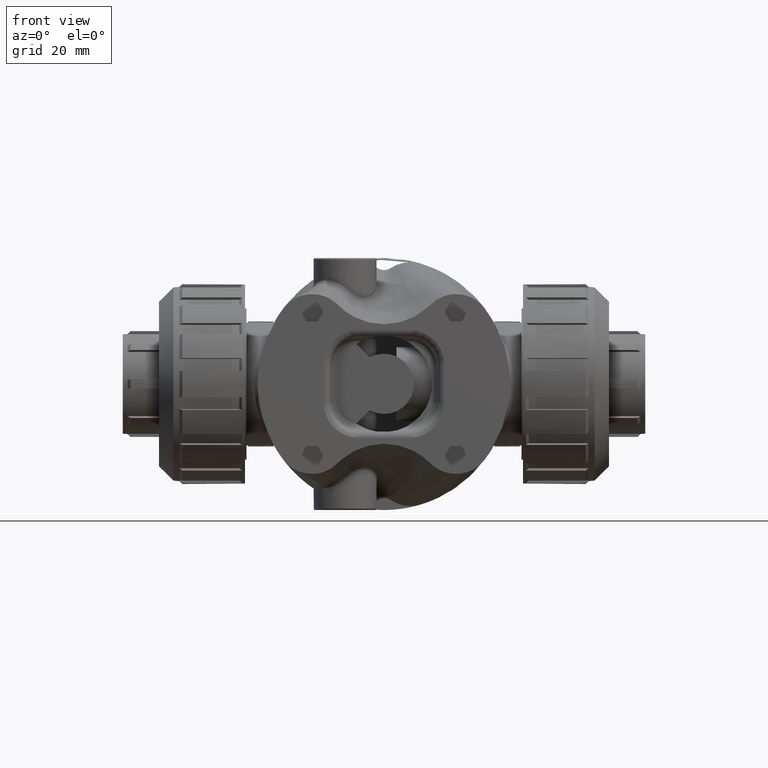
[diagram: clean part render]
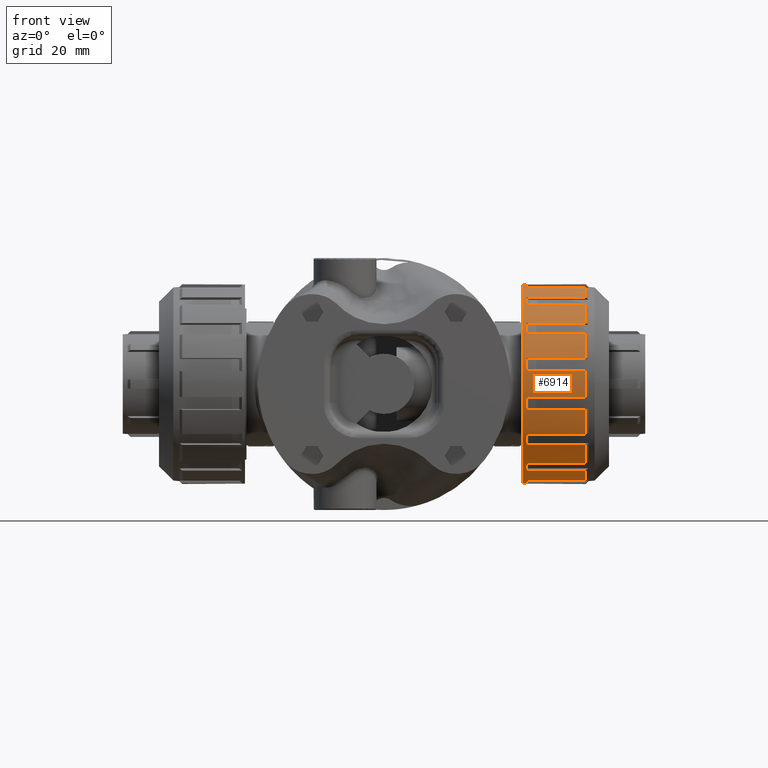
[diagram: same view with one face highlighted and labeled with its STEP entity id]
A machine part, front view. The second image highlights one B-rep face of the part: STEP entity #6914.
In plain terms, the highlighted cylindrical surface (bore or boss wall) has radius 35.306 mm, axis along (1, -0, -0).
Its self-contained STEP definition (entity closure, byte-faithful):
#79=CARTESIAN_POINT('',(1.930830213315427,2.217136898541803,-0.359758472692506));
#80=VERTEX_POINT('',#79);
#81=CARTESIAN_POINT('',(1.930830213315428,0.874500000000000,1.996539E-015));
#82=DIRECTION('',(1.0,0.0,0.0));
#83=DIRECTION('',(0.0,1.0,0.0));
#84=AXIS2_PLACEMENT_3D('',#81,#82,#83);
#85=CIRCLE('',#84,1.390000000000000);
#86=EDGE_CURVE('',#80,#80,#85,.T.);
#4863=CARTESIAN_POINT('',(1.971830213315427,2.078275311260367,-0.695000000000002));
#4864=VERTEX_POINT('',#4863);
#4873=CARTESIAN_POINT('',(2.801830213315426,2.078275311260367,-0.695000000000004));
#4874=VERTEX_POINT('',#4873);
#4875=CARTESIAN_POINT('',(1.971830213315427,2.078275311260367,-0.695000000000002));
#4876=DIRECTION('',(1.0,0.0,0.0));
#4877=VECTOR('',#4876,0.829999999999999);
#4878=LINE('',#4875,#4877);
#4879=EDGE_CURVE('',#4864,#4874,#4878,.T.);
#4903=CARTESIAN_POINT('',(2.801830213315427,2.217136898541804,-0.359758472692508));
#4904=VERTEX_POINT('',#4903);
#4921=CARTESIAN_POINT('',(2.801830213315427,0.874500000000000,8.345585E-017));
#4922=DIRECTION('',(1.000000000000000,7.963321E-016,-4.597625E-016));
#4923=DIRECTION('',(-9.195251E-016,0.866025403784437,-0.500000000000003));
#4924=AXIS2_PLACEMENT_3D('',#4921,#4922,#4923);
#4925=CIRCLE('',#4924,1.389999999999999);
#4926=EDGE_CURVE('',#4874,#4904,#4925,.T.);
#4938=CARTESIAN_POINT('',(1.971830213315428,2.217136898541804,-0.359758472692506));
#4939=VERTEX_POINT('',#4938);
#4953=CARTESIAN_POINT('',(1.971830213315428,2.217136898541804,-0.359758472692506));
#4954=DIRECTION('',(1.0,0.0,0.0));
#4955=VECTOR('',#4954,0.829999999999999);
#4956=LINE('',#4953,#4955);
#4957=EDGE_CURVE('',#4939,#4904,#4956,.T.);
#4967=CARTESIAN_POINT('',(1.971830213315426,1.720678386322117,-1.102761143004818));
#4968=VERTEX_POINT('',#4967);
#4977=CARTESIAN_POINT('',(2.801830213315426,1.720678386322117,-1.102761143004820));
#4978=VERTEX_POINT('',#4977);
#4979=CARTESIAN_POINT('',(1.971830213315426,1.720678386322117,-1.102761143004818));
#4980=DIRECTION('',(1.0,0.0,0.0));
#4981=VECTOR('',#4980,0.830000000000000);
#4982=LINE('',#4979,#4981);
#4983=EDGE_CURVE('',#4968,#4978,#4982,.T.);
#5007=CARTESIAN_POINT('',(2.801830213315426,1.977261143004814,-0.846178386322126));
#5008=VERTEX_POINT('',#5007);
#5025=CARTESIAN_POINT('',(2.801830213315427,0.874500000000000,8.369815E-017));
#5026=DIRECTION('',(1.0,9.836919E-016,-1.281972E-015));
#5027=DIRECTION('',(-1.615891E-015,0.608761429008718,-0.793353340291238));
#5028=AXIS2_PLACEMENT_3D('',#5025,#5026,#5027);
#5029=CIRCLE('',#5028,1.390000000000000);
#5030=EDGE_CURVE('',#4978,#5008,#5029,.T.);
#5042=CARTESIAN_POINT('',(1.971830213315426,1.977261143004814,-0.846178386322124));
#5043=VERTEX_POINT('',#5042);
#5057=CARTESIAN_POINT('',(1.971830213315426,1.977261143004814,-0.846178386322124));
#5058=DIRECTION('',(1.0,0.0,0.0));
#5059=VECTOR('',#5058,0.830000000000000);
#5060=LINE('',#5057,#5059);
#5061=EDGE_CURVE('',#5043,#5008,#5060,.T.);
#5071=CARTESIAN_POINT('',(1.971830213315425,1.234258472692499,-1.342636898541804));
#5072=VERTEX_POINT('',#5071);
#5081=CARTESIAN_POINT('',(2.801830213315425,1.234258472692499,-1.342636898541806));
#5082=VERTEX_POINT('',#5081);
#5083=CARTESIAN_POINT('',(1.971830213315425,1.234258472692499,-1.342636898541803));
#5084=DIRECTION('',(1.0,0.0,0.0));
#5085=VECTOR('',#5084,0.829999999999999);
#5086=LINE('',#5083,#5085);
#5087=EDGE_CURVE('',#5072,#5082,#5086,.T.);
#5111=CARTESIAN_POINT('',(2.801830213315425,1.569499999999996,-1.203775311260372));
#5112=VERTEX_POINT('',#5111);
#5129=CARTESIAN_POINT('',(2.801830213315427,0.874500000000000,8.386005E-017));
#5130=DIRECTION('',(1.000000000000000,5.346277E-016,-1.995258E-015));
#5131=DIRECTION('',(-2.065643E-015,0.258819045102518,-0.965925826289069));
#5132=AXIS2_PLACEMENT_3D('',#5129,#5130,#5131);
#5133=CIRCLE('',#5132,1.389999999999999);
#5134=EDGE_CURVE('',#5082,#5112,#5133,.T.);
#5146=CARTESIAN_POINT('',(1.971830213315425,1.569499999999996,-1.203775311260370));
#5147=VERTEX_POINT('',#5146);
#5161=CARTESIAN_POINT('',(1.971830213315425,1.569499999999996,-1.203775311260370));
#5162=DIRECTION('',(1.0,0.0,0.0));
#5163=VECTOR('',#5162,0.830000000000000);
#5164=LINE('',#5161,#5163);
#5165=EDGE_CURVE('',#5147,#5112,#5164,.T.);
#5175=CARTESIAN_POINT('',(1.971830213315425,0.693068592814123,-1.378108357309593));
#5176=VERTEX_POINT('',#5175);
#5185=CARTESIAN_POINT('',(2.801830213315425,0.693068592814123,-1.378108357309595));
#5186=VERTEX_POINT('',#5185);
#5187=CARTESIAN_POINT('',(1.971830213315425,0.693068592814123,-1.378108357309593));
#5188=DIRECTION('',(1.0,0.0,0.0));
#5189=VECTOR('',#5188,0.829999999999999);
#5190=LINE('',#5187,#5189);
#5191=EDGE_CURVE('',#5176,#5186,#5190,.T.);
#5215=CARTESIAN_POINT('',(2.801830213315425,1.055931407185866,-1.378108357309597));
#5216=VERTEX_POINT('',#5215);
#5233=CARTESIAN_POINT('',(2.801830213315427,0.874500000000000,8.391690E-017));
#5234=DIRECTION('',(1.0,-2.871982E-016,-2.181487E-015));
#5235=DIRECTION('',(-2.200311E-015,-0.130526192220055,-0.991444861373810));
#5236=AXIS2_PLACEMENT_3D('',#5233,#5234,#5235);
#5237=CIRCLE('',#5236,1.389999999999999);
#5238=EDGE_CURVE('',#5186,#5216,#5237,.T.);
#5250=CARTESIAN_POINT('',(1.971830213315425,1.055931407185867,-1.378108357309595));
#5251=VERTEX_POINT('',#5250);
#5265=CARTESIAN_POINT('',(1.971830213315425,1.055931407185867,-1.378108357309595));
#5266=DIRECTION('',(1.0,0.0,0.0));
#5267=VECTOR('',#5266,0.830000000000000);
#5268=LINE('',#5265,#5267);
#5269=EDGE_CURVE('',#5251,#5216,#5268,.T.);
#5279=CARTESIAN_POINT('',(1.971830213315426,0.179499999999997,-1.203775311260365));
#5280=VERTEX_POINT('',#5279);
#5289=CARTESIAN_POINT('',(2.801830213315425,0.179499999999996,-1.203775311260367));
#5290=VERTEX_POINT('',#5289);
#5291=CARTESIAN_POINT('',(1.971830213315426,0.179499999999997,-1.203775311260365));
#5292=DIRECTION('',(1.0,0.0,0.0));
#5293=VECTOR('',#5292,0.829999999999999);
#5294=LINE('',#5291,#5293);
#5295=EDGE_CURVE('',#5280,#5290,#5294,.T.);
#5319=CARTESIAN_POINT('',(2.801830213315425,0.514741527307492,-1.342636898541803));
#5320=VERTEX_POINT('',#5319);
#5337=CARTESIAN_POINT('',(2.801830213315427,0.874500000000000,8.386005E-017));
#5338=DIRECTION('',(1.000000000000000,-9.996964E-016,-1.731525E-015));
#5339=DIRECTION('',(-1.999393E-015,-0.500000000000003,-0.866025403784437));
#5340=AXIS2_PLACEMENT_3D('',#5337,#5338,#5339);
#5341=CIRCLE('',#5340,1.389999999999999);
#5342=EDGE_CURVE('',#5290,#5320,#5341,.T.);
#5354=CARTESIAN_POINT('',(1.971830213315425,0.514741527307492,-1.342636898541801));
#5355=VERTEX_POINT('',#5354);
#5369=CARTESIAN_POINT('',(1.971830213315425,0.514741527307492,-1.342636898541801));
#5370=DIRECTION('',(1.0,0.0,0.0));
#5371=VECTOR('',#5370,0.829999999999999);
#5372=LINE('',#5369,#5371);
#5373=EDGE_CURVE('',#5355,#5320,#5372,.T.);
#5383=CARTESIAN_POINT('',(1.971830213315426,-0.228261143004819,-0.846178386322116));
#5384=VERTEX_POINT('',#5383);
#5393=CARTESIAN_POINT('',(2.801830213315426,-0.228261143004819,-0.846178386322118));
#5394=VERTEX_POINT('',#5393);
#5395=CARTESIAN_POINT('',(1.971830213315426,-0.228261143004819,-0.846178386322116));
#5396=DIRECTION('',(1.0,0.0,0.0));
#5397=VECTOR('',#5396,0.830000000000000);
#5398=LINE('',#5395,#5397);
#5399=EDGE_CURVE('',#5384,#5394,#5398,.T.);
#5423=CARTESIAN_POINT('',(2.801830213315425,0.028321613677875,-1.102761143004814));
#5424=VERTEX_POINT('',#5423);
#5441=CARTESIAN_POINT('',(2.801830213315427,0.874500000000000,8.369815E-017));
#5442=DIRECTION('',(1.000000000000000,-1.184855E-015,-9.091709E-016));
#5443=DIRECTION('',(-1.493477E-015,-0.793353340291237,-0.608761429008718));
#5444=AXIS2_PLACEMENT_3D('',#5441,#5442,#5443);
#5445=CIRCLE('',#5444,1.390000000000000);
#5446=EDGE_CURVE('',#5394,#5424,#5445,.T.);
#5458=CARTESIAN_POINT('',(1.971830213315425,0.028321613677875,-1.102761143004812));
#5459=VERTEX_POINT('',#5458);
#5473=CARTESIAN_POINT('',(1.971830213315425,0.028321613677875,-1.102761143004812));
#5474=DIRECTION('',(1.0,0.0,0.0));
#5475=VECTOR('',#5474,0.829999999999999);
#5476=LINE('',#5473,#5475);
#5477=EDGE_CURVE('',#5459,#5424,#5476,.T.);
#5487=CARTESIAN_POINT('',(1.971830213315427,-0.468136898541805,-0.359758472692497));
#5488=VERTEX_POINT('',#5487);
#5497=CARTESIAN_POINT('',(2.801830213315426,-0.468136898541806,-0.359758472692499));
#5498=VERTEX_POINT('',#5497);
#5499=CARTESIAN_POINT('',(1.971830213315427,-0.468136898541805,-0.359758472692497));
#5500=DIRECTION('',(1.0,0.0,0.0));
#5501=VECTOR('',#5500,0.829999999999999);
#5502=LINE('',#5499,#5501);
#5503=EDGE_CURVE('',#5488,#5498,#5502,.T.);
#5527=CARTESIAN_POINT('',(2.801830213315426,-0.329275311260372,-0.694999999999996));
#5528=VERTEX_POINT('',#5527);
#5545=CARTESIAN_POINT('',(2.801830213315427,0.874500000000000,8.345585E-017));
#5546=DIRECTION('',(1.000000000000000,-7.337012E-016,-1.965947E-016));
#5547=DIRECTION('',(-7.595834E-016,-0.965925826289069,-0.258819045102518));
#5548=AXIS2_PLACEMENT_3D('',#5545,#5546,#5547);
#5549=CIRCLE('',#5548,1.389999999999999);
#5550=EDGE_CURVE('',#5498,#5528,#5549,.T.);
#5562=CARTESIAN_POINT('',(1.971830213315426,-0.329275311260372,-0.694999999999994));
#5563=VERTEX_POINT('',#5562);
#5577=CARTESIAN_POINT('',(1.971830213315426,-0.329275311260372,-0.694999999999994));
#5578=DIRECTION('',(1.0,0.0,0.0));
#5579=VECTOR('',#5578,0.830000000000000);
#5580=LINE('',#5577,#5579);
#5581=EDGE_CURVE('',#5563,#5528,#5580,.T.);
#5591=CARTESIAN_POINT('',(1.971830213315428,-0.503608357309595,0.181431407185878));
#5592=VERTEX_POINT('',#5591);
#5601=CARTESIAN_POINT('',(2.801830213315427,-0.503608357309595,0.181431407185876));
#5602=VERTEX_POINT('',#5601);
#5603=CARTESIAN_POINT('',(1.971830213315428,-0.503608357309595,0.181431407185878));
#5604=DIRECTION('',(1.0,0.0,0.0));
#5605=VECTOR('',#5604,0.829999999999999);
#5606=LINE('',#5603,#5605);
#5607=EDGE_CURVE('',#5592,#5602,#5606,.T.);
#5631=CARTESIAN_POINT('',(2.801830213315427,-0.503608357309597,-0.181431407185867));
#5632=VERTEX_POINT('',#5631);
#5649=CARTESIAN_POINT('',(2.801830213315427,0.874500000000000,8.317003E-017));
#5650=DIRECTION('',(1.000000000000000,8.978344E-017,-1.182021E-017));
#5651=DIRECTION('',(9.055817E-017,-0.991444861373810,0.130526192220055));
#5652=AXIS2_PLACEMENT_3D('',#5649,#5650,#5651);
#5653=CIRCLE('',#5652,1.389999999999999);
#5654=EDGE_CURVE('',#5602,#5632,#5653,.T.);
#5666=CARTESIAN_POINT('',(1.971830213315427,-0.503608357309597,-0.181431407185865));
#5667=VERTEX_POINT('',#5666);
#5681=CARTESIAN_POINT('',(1.971830213315427,-0.503608357309597,-0.181431407185865));
#5682=DIRECTION('',(1.0,0.0,0.0));
#5683=VECTOR('',#5682,0.830000000000000);
#5684=LINE('',#5681,#5683);
#5685=EDGE_CURVE('',#5667,#5632,#5684,.T.);
#5695=CARTESIAN_POINT('',(1.971830213315429,-0.329275311260367,0.695000000000006));
#5696=VERTEX_POINT('',#5695);
#5705=CARTESIAN_POINT('',(2.801830213315429,-0.329275311260367,0.695000000000004));
#5706=VERTEX_POINT('',#5705);
#5707=CARTESIAN_POINT('',(1.971830213315429,-0.329275311260367,0.695000000000006));
#5708=DIRECTION('',(1.0,0.0,0.0));
#5709=VECTOR('',#5708,0.830000000000000);
#5710=LINE('',#5707,#5709);
#5711=EDGE_CURVE('',#5696,#5706,#5710,.T.);
#5735=CARTESIAN_POINT('',(2.801830213315428,-0.468136898541804,0.359758472692508));
#5736=VERTEX_POINT('',#5735);
#5753=CARTESIAN_POINT('',(2.801830213315427,0.874500000000000,8.288422E-017));
#5754=DIRECTION('',(1.000000000000000,8.032575E-016,-4.637609E-016));
#5755=DIRECTION('',(9.275218E-016,-0.866025403784437,0.500000000000003));
#5756=AXIS2_PLACEMENT_3D('',#5753,#5754,#5755);
#5757=CIRCLE('',#5756,1.390000000000000);
#5758=EDGE_CURVE('',#5706,#5736,#5757,.T.);
#5770=CARTESIAN_POINT('',(1.971830213315428,-0.468136898541803,0.359758472692510));
#5771=VERTEX_POINT('',#5770);
#5785=CARTESIAN_POINT('',(1.971830213315428,-0.468136898541803,0.359758472692510));
#5786=DIRECTION('',(1.0,0.0,0.0));
#5787=VECTOR('',#5786,0.830000000000000);
#5788=LINE('',#5785,#5787);
#5789=EDGE_CURVE('',#5771,#5736,#5788,.T.);
#5799=CARTESIAN_POINT('',(1.971830213315430,0.028321613677883,1.102761143004821));
#5800=VERTEX_POINT('',#5799);
#5809=CARTESIAN_POINT('',(2.801830213315430,0.028321613677882,1.102761143004819));
#5810=VERTEX_POINT('',#5809);
#5811=CARTESIAN_POINT('',(1.971830213315430,0.028321613677882,1.102761143004821));
#5812=DIRECTION('',(1.0,0.0,0.0));
#5813=VECTOR('',#5812,0.829999999999999);
#5814=LINE('',#5811,#5813);
#5815=EDGE_CURVE('',#5800,#5810,#5814,.T.);
#5839=CARTESIAN_POINT('',(2.801830213315429,-0.228261143004814,0.846178386322125));
#5840=VERTEX_POINT('',#5839);
#5857=CARTESIAN_POINT('',(2.801830213315427,0.874500000000000,8.264192E-017));
#5858=DIRECTION('',(1.000000000000000,9.885600E-016,-1.288316E-015));
#5859=DIRECTION('',(1.623887E-015,-0.608761429008718,0.793353340291237));
#5860=AXIS2_PLACEMENT_3D('',#5857,#5858,#5859);
#5861=CIRCLE('',#5860,1.390000000000000);
#5862=EDGE_CURVE('',#5810,#5840,#5861,.T.);
#5874=CARTESIAN_POINT('',(1.971830213315430,-0.228261143004813,0.846178386322127));
#5875=VERTEX_POINT('',#5874);
#5889=CARTESIAN_POINT('',(1.971830213315430,-0.228261143004813,0.846178386322127));
#5890=DIRECTION('',(1.0,0.0,0.0));
#5891=VECTOR('',#5890,0.830000000000000);
#5892=LINE('',#5889,#5891);
#5893=EDGE_CURVE('',#5875,#5840,#5892,.T.);
#5903=CARTESIAN_POINT('',(1.971830213315431,0.514741527307500,1.342636898541807));
#5904=VERTEX_POINT('',#5903);
#5913=CARTESIAN_POINT('',(2.801830213315431,0.514741527307500,1.342636898541806));
#5914=VERTEX_POINT('',#5913);
#5915=CARTESIAN_POINT('',(1.971830213315431,0.514741527307500,1.342636898541807));
#5916=DIRECTION('',(1.0,0.0,0.0));
#5917=VECTOR('',#5916,0.830000000000000);
#5918=LINE('',#5915,#5917);
#5919=EDGE_CURVE('',#5904,#5914,#5918,.T.);
#5943=CARTESIAN_POINT('',(2.801830213315430,0.179500000000004,1.203775311260372));
#5944=VERTEX_POINT('',#5943);
#5961=CARTESIAN_POINT('',(2.801830213315427,0.874500000000000,8.248002E-017));
#5962=DIRECTION('',(1.000000000000000,5.366974E-016,-2.002982E-015));
#5963=DIRECTION('',(2.073640E-015,-0.258819045102518,0.965925826289069));
#5964=AXIS2_PLACEMENT_3D('',#5961,#5962,#5963);
#5965=CIRCLE('',#5964,1.390000000000000);
#5966=EDGE_CURVE('',#5914,#5944,#5965,.T.);
#5978=CARTESIAN_POINT('',(1.971830213315430,0.179500000000004,1.203775311260373));
#5979=VERTEX_POINT('',#5978);
#5993=CARTESIAN_POINT('',(1.971830213315430,0.179500000000004,1.203775311260374));
#5994=DIRECTION('',(1.0,0.0,0.0));
#5995=VECTOR('',#5994,0.830000000000000);
#5996=LINE('',#5993,#5995);
#5997=EDGE_CURVE('',#5979,#5944,#5996,.T.);
#6007=CARTESIAN_POINT('',(1.971830213315431,1.055931407185876,1.378108357309597));
#6008=VERTEX_POINT('',#6007);
#6017=CARTESIAN_POINT('',(2.801830213315431,1.055931407185876,1.378108357309596));
#6018=VERTEX_POINT('',#6017);
#6019=CARTESIAN_POINT('',(1.971830213315431,1.055931407185876,1.378108357309597));
#6020=DIRECTION('',(1.0,0.0,0.0));
#6021=VECTOR('',#6020,0.829999999999999);
#6022=LINE('',#6019,#6021);
#6023=EDGE_CURVE('',#6008,#6018,#6022,.T.);
#6047=CARTESIAN_POINT('',(2.801830213315431,0.693068592814132,1.378108357309597));
#6048=VERTEX_POINT('',#6047);
#6065=CARTESIAN_POINT('',(2.801830213315427,0.874500000000000,8.242317E-017));
#6066=DIRECTION('',(1.0,-2.882420E-016,-2.189415E-015));
#6067=DIRECTION('',(2.208308E-015,0.130526192220054,0.991444861373810));
#6068=AXIS2_PLACEMENT_3D('',#6065,#6066,#6067);
#6069=CIRCLE('',#6068,1.390000000000000);
#6070=EDGE_CURVE('',#6018,#6048,#6069,.T.);
#6082=CARTESIAN_POINT('',(1.971830213315431,0.693068592814133,1.378108357309598));
#6083=VERTEX_POINT('',#6082);
#6097=CARTESIAN_POINT('',(1.971830213315431,0.693068592814133,1.378108357309599));
#6098=DIRECTION('',(1.0,0.0,0.0));
#6099=VECTOR('',#6098,0.830000000000000);
#6100=LINE('',#6097,#6099);
#6101=EDGE_CURVE('',#6083,#6048,#6100,.T.);
#6111=CARTESIAN_POINT('',(1.971830213315431,1.569500000000004,1.203775311260369));
#6112=VERTEX_POINT('',#6111);
#6121=CARTESIAN_POINT('',(2.801830213315431,1.569500000000003,1.203775311260367));
#6122=VERTEX_POINT('',#6121);
#6123=CARTESIAN_POINT('',(1.971830213315431,1.569500000000003,1.203775311260369));
#6124=DIRECTION('',(1.0,0.0,0.0));
#6125=VECTOR('',#6124,0.830000000000000);
#6126=LINE('',#6123,#6125);
#6127=EDGE_CURVE('',#6112,#6122,#6126,.T.);
#6151=CARTESIAN_POINT('',(2.801830213315431,1.234258472692508,1.342636898541804));
#6152=VERTEX_POINT('',#6151);
#6169=CARTESIAN_POINT('',(2.801830213315427,0.874500000000000,8.248002E-017));
#6170=DIRECTION('',(1.0,-1.003695E-015,-1.738450E-015));
#6171=DIRECTION('',(2.007390E-015,0.500000000000002,0.866025403784437));
#6172=AXIS2_PLACEMENT_3D('',#6169,#6170,#6171);
#6173=CIRCLE('',#6172,1.390000000000000);
#6174=EDGE_CURVE('',#6122,#6152,#6173,.T.);
#6186=CARTESIAN_POINT('',(1.971830213315431,1.234258472692508,1.342636898541806));
#6187=VERTEX_POINT('',#6186);
#6201=CARTESIAN_POINT('',(1.971830213315431,1.234258472692508,1.342636898541806));
#6202=DIRECTION('',(1.0,0.0,0.0));
#6203=VECTOR('',#6202,0.830000000000000);
#6204=LINE('',#6201,#6203);
#6205=EDGE_CURVE('',#6187,#6152,#6204,.T.);
#6215=CARTESIAN_POINT('',(1.971830213315430,1.977261143004819,0.846178386322120));
#6216=VERTEX_POINT('',#6215);
#6225=CARTESIAN_POINT('',(2.801830213315430,1.977261143004819,0.846178386322118));
#6226=VERTEX_POINT('',#6225);
#6227=CARTESIAN_POINT('',(1.971830213315430,1.977261143004819,0.846178386322120));
#6228=DIRECTION('',(1.0,0.0,0.0));
#6229=VECTOR('',#6228,0.829999999999999);
#6230=LINE('',#6227,#6229);
#6231=EDGE_CURVE('',#6216,#6226,#6230,.T.);
#6255=CARTESIAN_POINT('',(2.801830213315431,1.720678386322125,1.102761143004814));
#6256=VERTEX_POINT('',#6255);
#6273=CARTESIAN_POINT('',(2.801830213315427,0.874500000000000,8.264192E-017));
#6274=DIRECTION('',(1.000000000000000,-1.191199E-015,-9.140391E-016));
#6275=DIRECTION('',(1.501473E-015,0.793353340291237,0.608761429008718));
#6276=AXIS2_PLACEMENT_3D('',#6273,#6274,#6275);
#6277=CIRCLE('',#6276,1.390000000000000);
#6278=EDGE_CURVE('',#6226,#6256,#6277,.T.);
#6290=CARTESIAN_POINT('',(1.971830213315430,1.720678386322125,1.102761143004816));
#6291=VERTEX_POINT('',#6290);
#6305=CARTESIAN_POINT('',(1.971830213315430,1.720678386322125,1.102761143004816));
#6306=DIRECTION('',(1.0,0.0,0.0));
#6307=VECTOR('',#6306,0.830000000000000);
#6308=LINE('',#6305,#6307);
#6309=EDGE_CURVE('',#6291,#6256,#6308,.T.);
#6319=CARTESIAN_POINT('',(1.971830213315429,2.217136898541805,0.359758472692502));
#6320=VERTEX_POINT('',#6319);
#6329=CARTESIAN_POINT('',(2.801830213315429,2.217136898541805,0.359758472692500));
#6330=VERTEX_POINT('',#6329);
#6331=CARTESIAN_POINT('',(1.971830213315429,2.217136898541805,0.359758472692502));
#6332=DIRECTION('',(1.0,0.0,0.0));
#6333=VECTOR('',#6332,0.830000000000000);
#6334=LINE('',#6331,#6333);
#6335=EDGE_CURVE('',#6320,#6330,#6334,.T.);
#6359=CARTESIAN_POINT('',(2.801830213315429,2.078275311260371,0.694999999999997));
#6360=VERTEX_POINT('',#6359);
#6377=CARTESIAN_POINT('',(2.801830213315427,0.874500000000000,8.288422E-017));
#6378=DIRECTION('',(1.0,-7.414255E-016,-1.986644E-016));
#6379=DIRECTION('',(7.675802E-016,0.965925826289069,0.258819045102518));
#6380=AXIS2_PLACEMENT_3D('',#6377,#6378,#6379);
#6381=CIRCLE('',#6380,1.390000000000000);
#6382=EDGE_CURVE('',#6330,#6360,#6381,.T.);
#6394=CARTESIAN_POINT('',(1.971830213315430,2.078275311260371,0.694999999999998));
#6395=VERTEX_POINT('',#6394);
#6409=CARTESIAN_POINT('',(1.971830213315430,2.078275311260371,0.694999999999998));
#6410=DIRECTION('',(1.0,0.0,0.0));
#6411=VECTOR('',#6410,0.830000000000000);
#6412=LINE('',#6409,#6411);
#6413=EDGE_CURVE('',#6395,#6360,#6412,.T.);
#6433=CARTESIAN_POINT('',(1.971830213315428,2.252608357309597,0.181431407185870));
#6434=VERTEX_POINT('',#6433);
#6441=CARTESIAN_POINT('',(1.971830213315428,0.874500000000000,1.906472E-015));
#6442=DIRECTION('',(1.0,0.0,0.0));
#6443=DIRECTION('',(0.0,1.0,0.0));
#6444=AXIS2_PLACEMENT_3D('',#6441,#6442,#6443);
#6445=CIRCLE('',#6444,1.390000000000000);
#6446=EDGE_CURVE('',#6434,#6320,#6445,.T.);
#6465=CARTESIAN_POINT('',(1.971830213315428,0.874500000000000,1.906472E-015));
#6466=DIRECTION('',(1.0,0.0,0.0));
#6467=DIRECTION('',(0.0,1.0,0.0));
#6468=AXIS2_PLACEMENT_3D('',#6465,#6466,#6467);
#6469=CIRCLE('',#6468,1.390000000000000);
#6470=EDGE_CURVE('',#6395,#6216,#6469,.T.);
#6489=CARTESIAN_POINT('',(1.971830213315428,0.874500000000000,1.906472E-015));
#6490=DIRECTION('',(1.0,0.0,0.0));
#6491=DIRECTION('',(0.0,1.0,0.0));
#6492=AXIS2_PLACEMENT_3D('',#6489,#6490,#6491);
#6493=CIRCLE('',#6492,1.390000000000000);
#6494=EDGE_CURVE('',#6291,#6112,#6493,.T.);
#6513=CARTESIAN_POINT('',(1.971830213315428,0.874500000000000,1.906472E-015));
#6514=DIRECTION('',(1.0,0.0,0.0));
#6515=DIRECTION('',(0.0,1.0,0.0));
#6516=AXIS2_PLACEMENT_3D('',#6513,#6514,#6515);
#6517=CIRCLE('',#6516,1.390000000000000);
#6518=EDGE_CURVE('',#6187,#6008,#6517,.T.);
#6537=CARTESIAN_POINT('',(1.971830213315428,0.874500000000000,1.906472E-015));
#6538=DIRECTION('',(1.0,0.0,0.0));
#6539=DIRECTION('',(0.0,1.0,0.0));
#6540=AXIS2_PLACEMENT_3D('',#6537,#6538,#6539);
#6541=CIRCLE('',#6540,1.390000000000000);
#6542=EDGE_CURVE('',#6083,#5904,#6541,.T.);
#6561=CARTESIAN_POINT('',(1.971830213315428,0.874500000000000,1.906472E-015));
#6562=DIRECTION('',(1.0,0.0,0.0));
#6563=DIRECTION('',(0.0,1.0,0.0));
#6564=AXIS2_PLACEMENT_3D('',#6561,#6562,#6563);
#6565=CIRCLE('',#6564,1.390000000000000);
#6566=EDGE_CURVE('',#5979,#5800,#6565,.T.);
#6585=CARTESIAN_POINT('',(1.971830213315428,0.874500000000000,1.906472E-015));
#6586=DIRECTION('',(1.0,0.0,0.0));
#6587=DIRECTION('',(0.0,1.0,0.0));
#6588=AXIS2_PLACEMENT_3D('',#6585,#6586,#6587);
#6589=CIRCLE('',#6588,1.390000000000000);
#6590=EDGE_CURVE('',#5875,#5696,#6589,.T.);
#6609=CARTESIAN_POINT('',(1.971830213315428,0.874500000000000,1.906472E-015));
#6610=DIRECTION('',(1.0,0.0,0.0));
#6611=DIRECTION('',(0.0,1.0,0.0));
#6612=AXIS2_PLACEMENT_3D('',#6609,#6610,#6611);
#6613=CIRCLE('',#6612,1.390000000000000);
#6614=EDGE_CURVE('',#5771,#5592,#6613,.T.);
#6633=CARTESIAN_POINT('',(1.971830213315428,0.874500000000000,1.906472E-015));
#6634=DIRECTION('',(1.0,0.0,0.0));
#6635=DIRECTION('',(0.0,1.0,0.0));
#6636=AXIS2_PLACEMENT_3D('',#6633,#6634,#6635);
#6637=CIRCLE('',#6636,1.390000000000000);
#6638=EDGE_CURVE('',#5667,#5488,#6637,.T.);
#6657=CARTESIAN_POINT('',(1.971830213315428,0.874500000000000,1.906472E-015));
#6658=DIRECTION('',(1.0,0.0,0.0));
#6659=DIRECTION('',(0.0,1.0,0.0));
#6660=AXIS2_PLACEMENT_3D('',#6657,#6658,#6659);
#6661=CIRCLE('',#6660,1.390000000000000);
#6662=EDGE_CURVE('',#5563,#5384,#6661,.T.);
#6681=CARTESIAN_POINT('',(1.971830213315428,0.874500000000000,1.906472E-015));
#6682=DIRECTION('',(1.0,0.0,0.0));
#6683=DIRECTION('',(0.0,1.0,0.0));
#6684=AXIS2_PLACEMENT_3D('',#6681,#6682,#6683);
#6685=CIRCLE('',#6684,1.390000000000000);
#6686=EDGE_CURVE('',#5459,#5280,#6685,.T.);
#6705=CARTESIAN_POINT('',(1.971830213315428,0.874500000000000,1.906472E-015));
#6706=DIRECTION('',(1.0,0.0,0.0));
#6707=DIRECTION('',(0.0,1.0,0.0));
#6708=AXIS2_PLACEMENT_3D('',#6705,#6706,#6707);
#6709=CIRCLE('',#6708,1.390000000000000);
#6710=EDGE_CURVE('',#5355,#5176,#6709,.T.);
#6729=CARTESIAN_POINT('',(1.971830213315428,0.874500000000000,1.906472E-015));
#6730=DIRECTION('',(1.0,0.0,0.0));
#6731=DIRECTION('',(0.0,1.0,0.0));
#6732=AXIS2_PLACEMENT_3D('',#6729,#6730,#6731);
#6733=CIRCLE('',#6732,1.390000000000000);
#6734=EDGE_CURVE('',#5251,#5072,#6733,.T.);
#6753=CARTESIAN_POINT('',(1.971830213315428,0.874500000000000,1.906472E-015));
#6754=DIRECTION('',(1.0,0.0,0.0));
#6755=DIRECTION('',(0.0,1.0,0.0));
#6756=AXIS2_PLACEMENT_3D('',#6753,#6754,#6755);
#6757=CIRCLE('',#6756,1.390000000000000);
#6758=EDGE_CURVE('',#5147,#4968,#6757,.T.);
#6777=CARTESIAN_POINT('',(1.971830213315428,0.874500000000000,1.906472E-015));
#6778=DIRECTION('',(1.0,0.0,0.0));
#6779=DIRECTION('',(0.0,1.0,0.0));
#6780=AXIS2_PLACEMENT_3D('',#6777,#6778,#6779);
#6781=CIRCLE('',#6780,1.390000000000000);
#6782=EDGE_CURVE('',#5043,#4864,#6781,.T.);
#6793=CARTESIAN_POINT('',(1.971830213315428,2.252608357309596,-0.181431407185873));
#6794=VERTEX_POINT('',#6793);
#6795=CARTESIAN_POINT('',(1.971830213315428,0.874500000000000,1.906472E-015));
#6796=DIRECTION('',(1.0,0.0,0.0));
#6797=DIRECTION('',(0.0,1.0,0.0));
#6798=AXIS2_PLACEMENT_3D('',#6795,#6796,#6797);
#6799=CIRCLE('',#6798,1.390000000000000);
#6800=EDGE_CURVE('',#4939,#6794,#6799,.T.);
#6820=CARTESIAN_POINT('',(1.951330213315428,0.874500000000000,1.951505E-015));
#6821=DIRECTION('',(1.0,-1.977858E-016,-2.196749E-015));
#6822=DIRECTION('',(0.0,1.0,0.0));
#6823=AXIS2_PLACEMENT_3D('',#6820,#6821,#6822);
#6824=CYLINDRICAL_SURFACE('',#6823,1.390000000000000);
#6825=ORIENTED_EDGE('',*,*,#86,.T.);
#6826=EDGE_LOOP('',(#6825));
#6827=FACE_OUTER_BOUND('',#6826,.T.);
#6828=ORIENTED_EDGE('',*,*,#6782,.F.);
#6829=ORIENTED_EDGE('',*,*,#5061,.T.);
#6830=ORIENTED_EDGE('',*,*,#5030,.F.);
#6831=ORIENTED_EDGE('',*,*,#4983,.F.);
#6832=ORIENTED_EDGE('',*,*,#6758,.F.);
#6833=ORIENTED_EDGE('',*,*,#5165,.T.);
#6834=ORIENTED_EDGE('',*,*,#5134,.F.);
#6835=ORIENTED_EDGE('',*,*,#5087,.F.);
#6836=ORIENTED_EDGE('',*,*,#6734,.F.);
#6837=ORIENTED_EDGE('',*,*,#5269,.T.);
#6838=ORIENTED_EDGE('',*,*,#5238,.F.);
#6839=ORIENTED_EDGE('',*,*,#5191,.F.);
#6840=ORIENTED_EDGE('',*,*,#6710,.F.);
#6841=ORIENTED_EDGE('',*,*,#5373,.T.);
#6842=ORIENTED_EDGE('',*,*,#5342,.F.);
#6843=ORIENTED_EDGE('',*,*,#5295,.F.);
#6844=ORIENTED_EDGE('',*,*,#6686,.F.);
#6845=ORIENTED_EDGE('',*,*,#5477,.T.);
#6846=ORIENTED_EDGE('',*,*,#5446,.F.);
#6847=ORIENTED_EDGE('',*,*,#5399,.F.);
#6848=ORIENTED_EDGE('',*,*,#6662,.F.);
#6849=ORIENTED_EDGE('',*,*,#5581,.T.);
#6850=ORIENTED_EDGE('',*,*,#5550,.F.);
#6851=ORIENTED_EDGE('',*,*,#5503,.F.);
#6852=ORIENTED_EDGE('',*,*,#6638,.F.);
#6853=ORIENTED_EDGE('',*,*,#5685,.T.);
#6854=ORIENTED_EDGE('',*,*,#5654,.F.);
#6855=ORIENTED_EDGE('',*,*,#5607,.F.);
#6856=ORIENTED_EDGE('',*,*,#6614,.F.);
#6857=ORIENTED_EDGE('',*,*,#5789,.T.);
#6858=ORIENTED_EDGE('',*,*,#5758,.F.);
#6859=ORIENTED_EDGE('',*,*,#5711,.F.);
#6860=ORIENTED_EDGE('',*,*,#6590,.F.);
#6861=ORIENTED_EDGE('',*,*,#5893,.T.);
#6862=ORIENTED_EDGE('',*,*,#5862,.F.);
#6863=ORIENTED_EDGE('',*,*,#5815,.F.);
#6864=ORIENTED_EDGE('',*,*,#6566,.F.);
#6865=ORIENTED_EDGE('',*,*,#5997,.T.);
#6866=ORIENTED_EDGE('',*,*,#5966,.F.);
#6867=ORIENTED_EDGE('',*,*,#5919,.F.);
#6868=ORIENTED_EDGE('',*,*,#6542,.F.);
#6869=ORIENTED_EDGE('',*,*,#6101,.T.);
#6870=ORIENTED_EDGE('',*,*,#6070,.F.);
#6871=ORIENTED_EDGE('',*,*,#6023,.F.);
#6872=ORIENTED_EDGE('',*,*,#6518,.F.);
#6873=ORIENTED_EDGE('',*,*,#6205,.T.);
#6874=ORIENTED_EDGE('',*,*,#6174,.F.);
#6875=ORIENTED_EDGE('',*,*,#6127,.F.);
#6876=ORIENTED_EDGE('',*,*,#6494,.F.);
#6877=ORIENTED_EDGE('',*,*,#6309,.T.);
#6878=ORIENTED_EDGE('',*,*,#6278,.F.);
#6879=ORIENTED_EDGE('',*,*,#6231,.F.);
#6880=ORIENTED_EDGE('',*,*,#6470,.F.);
#6881=ORIENTED_EDGE('',*,*,#6413,.T.);
#6882=ORIENTED_EDGE('',*,*,#6382,.F.);
#6883=ORIENTED_EDGE('',*,*,#6335,.F.);
#6884=ORIENTED_EDGE('',*,*,#6446,.F.);
#6885=CARTESIAN_POINT('',(2.801830213315428,2.252608357309597,0.181431407185868));
#6886=VERTEX_POINT('',#6885);
#6887=CARTESIAN_POINT('',(1.971830213315428,2.252608357309597,0.181431407185870));
#6888=DIRECTION('',(1.0,0.0,0.0));
#6889=VECTOR('',#6888,0.830000000000000);
#6890=LINE('',#6887,#6889);
#6891=EDGE_CURVE('',#6434,#6886,#6890,.T.);
#6892=ORIENTED_EDGE('',*,*,#6891,.T.);
#6893=CARTESIAN_POINT('',(2.801830213315427,2.252608357309596,-0.181431407185875));
#6894=VERTEX_POINT('',#6893);
#6895=CARTESIAN_POINT('',(2.801830213315427,0.874500000000000,8.317003E-017));
#6896=DIRECTION('',(1.0,0.0,0.0));
#6897=DIRECTION('',(0.0,1.0,0.0));
#6898=AXIS2_PLACEMENT_3D('',#6895,#6896,#6897);
#6899=CIRCLE('',#6898,1.390000000000000);
#6900=EDGE_CURVE('',#6894,#6886,#6899,.T.);
#6901=ORIENTED_EDGE('',*,*,#6900,.F.);
#6902=CARTESIAN_POINT('',(1.971830213315428,2.252608357309596,-0.181431407185873));
#6903=DIRECTION('',(1.0,0.0,0.0));
#6904=VECTOR('',#6903,0.830000000000000);
#6905=LINE('',#6902,#6904);
#6906=EDGE_CURVE('',#6794,#6894,#6905,.T.);
#6907=ORIENTED_EDGE('',*,*,#6906,.F.);
#6908=ORIENTED_EDGE('',*,*,#6800,.F.);
#6909=ORIENTED_EDGE('',*,*,#4957,.T.);
#6910=ORIENTED_EDGE('',*,*,#4926,.F.);
#6911=ORIENTED_EDGE('',*,*,#4879,.F.);
#6912=EDGE_LOOP('',(#6828,#6829,#6830,#6831,#6832,#6833,#6834,#6835,#6836,#6837,#6838,#6839,#6840,#6841,#6842,#6843,#6844,#6845,#6846,#6847,#6848,#6849,#6850,#6851,#6852,#6853,#6854,#6855,#6856,#6857,#6858,#6859,#6860,#6861,#6862,#6863,#6864,#6865,#6866,#6867,#6868,#6869,#6870,#6871,#6872,#6873,#6874,#6875,#6876,#6877,#6878,#6879,#6880,#6881,#6882,#6883,#6884,#6892,#6901,#6907,#6908,#6909,#6910,#6911));
#6913=FACE_BOUND('',#6912,.T.);
#6914=ADVANCED_FACE('',(#6827,#6913),#6824,.T.);